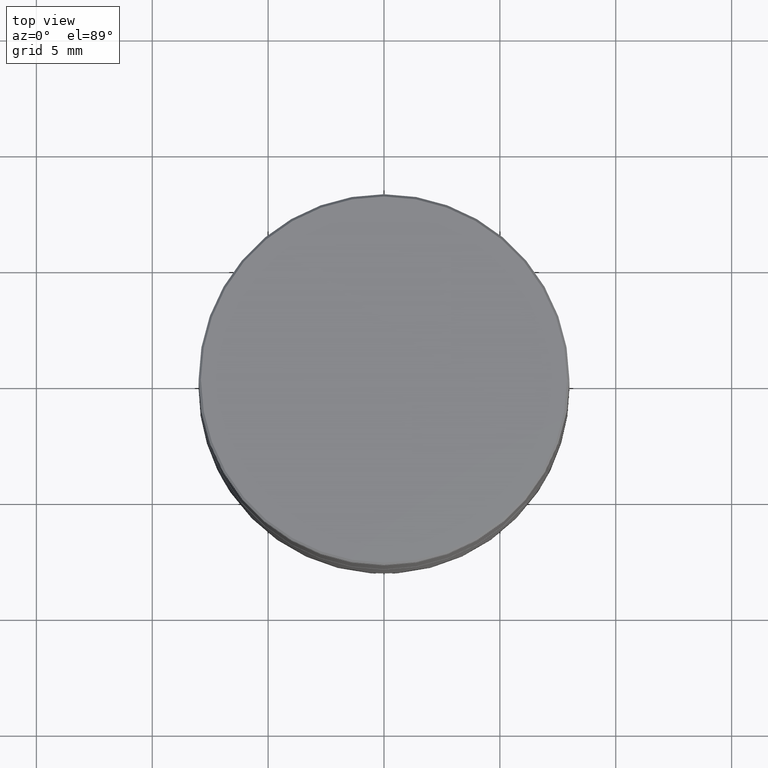
[diagram: clean part render]
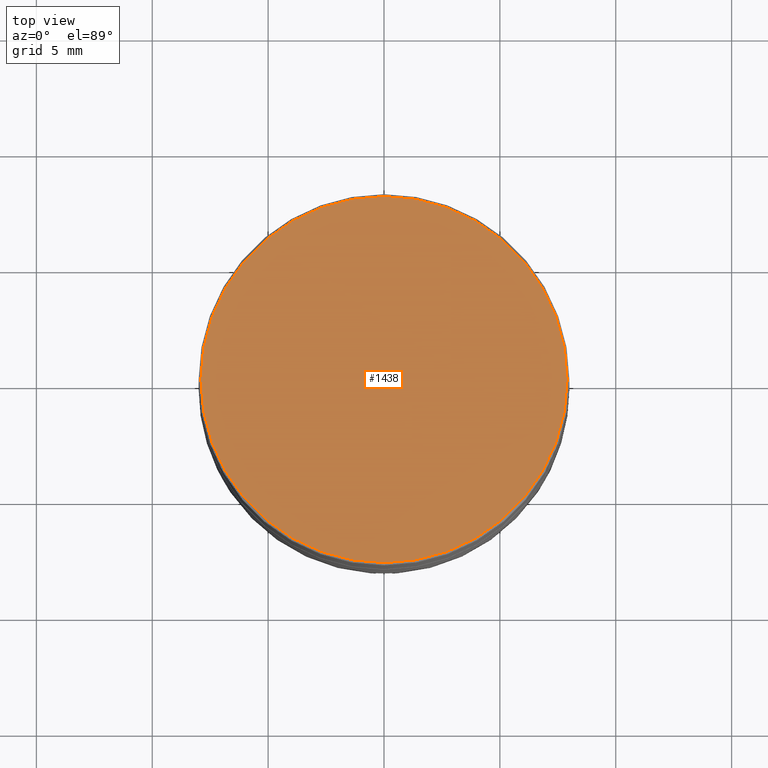
[diagram: same view with one face highlighted and labeled with its STEP entity id]
A machine part, top view. The second image highlights one B-rep face of the part: STEP entity #1438.
In plain terms, the highlighted planar face has unit normal (0, -0, 1).
Its self-contained STEP definition (entity closure, byte-faithful):
#22 = CIRCLE ( 'NONE', #607, 7.900000000000003908 ) ;
#27 = EDGE_CURVE ( 'NONE', #428, #1175, #22, .T. ) ;
#132 = CARTESIAN_POINT ( 'NONE',  ( -7.900000000000003908, 0.000000000000000000, 0.000000000000000000 ) ) ;
#170 = CARTESIAN_POINT ( 'NONE',  ( 0.000000000000000000, 0.000000000000000000, 0.000000000000000000 ) ) ;
#171 = FACE_OUTER_BOUND ( 'NONE', #1414, .T. ) ;
#273 = CARTESIAN_POINT ( 'NONE',  ( 0.000000000000000000, 0.000000000000000000, 0.000000000000000000 ) ) ;
#371 = DIRECTION ( 'NONE',  ( 1.000000000000000000, 0.000000000000000000, 0.000000000000000000 ) ) ;
#428 = VERTEX_POINT ( 'NONE', #132 ) ;
#491 = CARTESIAN_POINT ( 'NONE',  ( 0.000000000000000000, 0.000000000000000000, 0.000000000000000000 ) ) ;
#504 = CIRCLE ( 'NONE', #1428, 7.900000000000003908 ) ;
#533 = DIRECTION ( 'NONE',  ( 1.000000000000000000, 0.000000000000000000, 0.000000000000000000 ) ) ;
#607 = AXIS2_PLACEMENT_3D ( 'NONE', #170, #918, #1418 ) ;
#716 = CARTESIAN_POINT ( 'NONE',  ( 7.900000000000003908, 9.735942053221460844E-16, 0.000000000000000000 ) ) ;
#918 = DIRECTION ( 'NONE',  ( -0.000000000000000000, -0.000000000000000000, 1.000000000000000000 ) ) ;
#919 = DIRECTION ( 'NONE',  ( 0.000000000000000000, -0.000000000000000000, 1.000000000000000000 ) ) ;
#974 = EDGE_CURVE ( 'NONE', #1175, #428, #504, .T. ) ;
#1040 = ORIENTED_EDGE ( 'NONE', *, *, #974, .T. ) ;
#1175 = VERTEX_POINT ( 'NONE', #716 ) ;
#1277 = ORIENTED_EDGE ( 'NONE', *, *, #27, .T. ) ;
#1410 = PLANE ( 'NONE',  #1523 ) ;
#1414 = EDGE_LOOP ( 'NONE', ( #1277, #1040 ) ) ;
#1418 = DIRECTION ( 'NONE',  ( 1.000000000000000000, 0.000000000000000000, 0.000000000000000000 ) ) ;
#1428 = AXIS2_PLACEMENT_3D ( 'NONE', #491, #1499, #371 ) ;
#1438 = ADVANCED_FACE ( 'NONE', ( #171 ), #1410, .T. ) ;
#1499 = DIRECTION ( 'NONE',  ( -0.000000000000000000, -0.000000000000000000, 1.000000000000000000 ) ) ;
#1523 = AXIS2_PLACEMENT_3D ( 'NONE', #273, #919, #533 ) ;